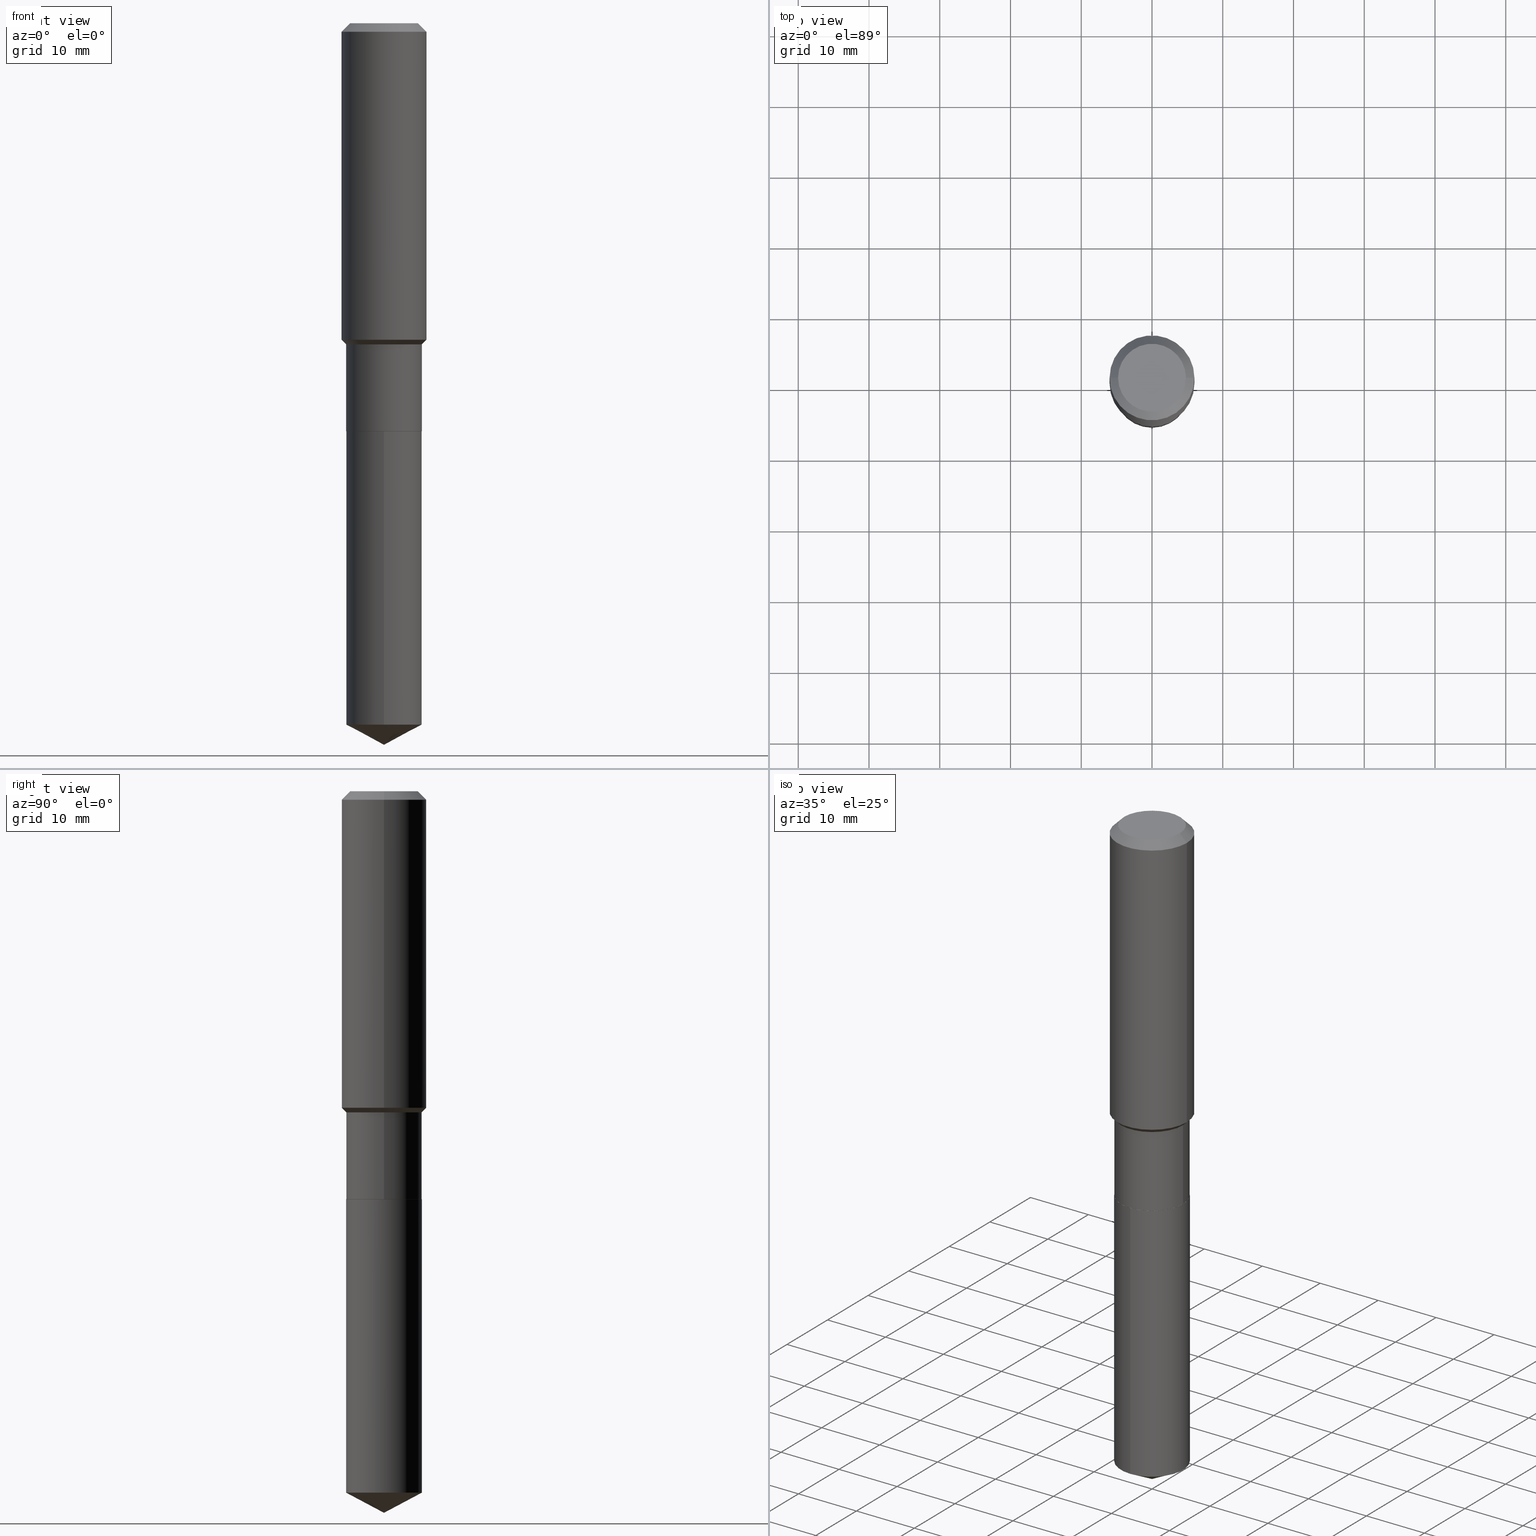
[diagram: canonical four-view strip — front | top / right | iso, engineering-drawing reading convention]
A machine part, canonical four-view strip (front | top / right | iso — engineering-drawing reading convention). The complete STEP part file that produces these views, byte-faithful:
ISO-10303-21;
HEADER;
FILE_DESCRIPTION (( 'STEP AP203' ),
    '1' );
FILE_NAME ('64677.STEP',
    '2024-04-24T18:43:59',
    ( '' ),
    ( '' ),
    'SwSTEP 2.0',
    'SolidWorks 2023',
    '' );
FILE_SCHEMA (( 'CONFIG_CONTROL_DESIGN' ));
ENDSEC;

DATA;
#1 = EDGE_LOOP ( 'NONE', ( #350, #304, #214, #456 ) ) ;
#2 = CARTESIAN_POINT ( 'NONE',  ( -8.645499744276047657E-28, 1.234434969436728800E-13, 35.35437874015748605 ) ) ;
#3 = ORIENTED_EDGE ( 'NONE', *, *, #106, .F. ) ;
#4 = CARTESIAN_POINT ( 'NONE',  ( 0.2362000000000001043, -1.649375784469496920E-15, 1.151752954443000508E-29 ) ) ;
#5 = ORIENTED_EDGE ( 'NONE', *, *, #271, .F. ) ;
#6 = CARTESIAN_POINT ( 'NONE',  ( 9.820314816619303750E-29, -1.402068072083418288E-14, -4.015699999999999825 ) ) ;
#7 = EDGE_LOOP ( 'NONE', ( #394, #159 ) ) ;
#8 = DIRECTION ( 'NONE',  ( -2.445468806185136597E-29, 3.491481338843145583E-15, 1.000000000000000000 ) ) ;
#9 = COORDINATED_UNIVERSAL_TIME_OFFSET ( 5, 0, .BEHIND. ) ;
#10 = ORIENTED_EDGE ( 'NONE', *, *, #217, .T. ) ;
#11 = DIRECTION ( 'NONE',  ( 1.000000000000000000, -6.982962677686266711E-15, 0.000000000000000000 ) ) ;
#12 = APPROVAL_DATE_TIME ( #213, #337 ) ;
#13 = CARTESIAN_POINT ( 'NONE',  ( -9.427742298522546243E-47, 1.346031739168365344E-32, 3.855188123715862256E-18 ) ) ;
#14 = ORIENTED_EDGE ( 'NONE', *, *, #428, .F. ) ;
#15 = CONICAL_SURFACE ( 'NONE', #163, 0.2361999999999999933, 0.7853981633974452814 ) ;
#16 = PERSON_AND_ORGANIZATION ( #476, #211 ) ;
#17 = CARTESIAN_POINT ( 'NONE',  ( 4.370297303533457201E-29, -6.239626300646584969E-15, -1.787099999999999911 ) ) ;
#18 = EDGE_CURVE ( 'NONE', #453, #127, #290, .T. ) ;
#19 = AXIS2_PLACEMENT_3D ( 'NONE', #34, #102, #448 ) ;
#20 = PRODUCT_DEFINITION ( 'UNKNOWN', '', #344, #309 ) ;
#21 = CARTESIAN_POINT ( 'NONE',  ( 9.546233790856167892E-29, -1.362986807001223316E-14, -3.903695408220509755 ) ) ;
#22 = DIRECTION ( 'NONE',  ( 1.000000000000000000, -6.982962677686268288E-15, 0.000000000000000000 ) ) ;
#23 = ADVANCED_FACE ( 'NONE', ( #237 ), #15, .T. ) ;
#24 = ORIENTED_EDGE ( 'NONE', *, *, #217, .F. ) ;
#25 = CARTESIAN_POINT ( 'NONE',  ( -0.2101500000000000035, -6.435394222942127608E-15, -2.271599999999999842 ) ) ;
#26 = CIRCLE ( 'NONE', #19, 0.2106500000000000039 ) ;
#27 = DIRECTION ( 'NONE',  ( -2.445468806185136597E-29, 3.491481338843145583E-15, 1.000000000000000000 ) ) ;
#28 = FACE_OUTER_BOUND ( 'NONE', #313, .T. ) ;
#29 = MANIFOLD_SOLID_BREP ( 'Body-Move/Copy2[1]', #255 ) ;
#30 = CARTESIAN_POINT ( 'NONE',  ( 0.2361999999999999933, -1.785387205520586782E-15, -0.04724000000000028177 ) ) ;
#31 = VECTOR ( 'NONE', #50, 39.37007874015748143 ) ;
#32 = ORIENTED_EDGE ( 'NONE', *, *, #39, .T. ) ;
#33 = FACE_OUTER_BOUND ( 'NONE', #229, .T. ) ;
#34 = CARTESIAN_POINT ( 'NONE',  ( 5.553904205727063700E-29, -7.929503268646668266E-15, -2.271100000000000119 ) ) ;
#35 = CONICAL_SURFACE ( 'NONE', #205, 0.2106499999999999484, 0.7853981633974489451 ) ;
#36 = LINE ( 'NONE', #149, #376 ) ;
#37 = VECTOR ( 'NONE', #48, 39.37007874015748854 ) ;
#38 = VERTEX_POINT ( 'NONE', #270 ) ;
#39 = EDGE_CURVE ( 'NONE', #418, #374, #259, .T. ) ;
#40 = DATE_AND_TIME ( #188, #328 ) ;
#41 = EDGE_LOOP ( 'NONE', ( #333, #65, #114, #196 ) ) ;
#42 = CARTESIAN_POINT ( 'NONE',  ( 0.000000000000000000, 0.000000000000000000, 0.000000000000000000 ) ) ;
#43 = AXIS2_PLACEMENT_3D ( 'NONE', #99, #175, #490 ) ;
#44 =( LENGTH_UNIT ( ) NAMED_UNIT ( * ) SI_UNIT ( $, .METRE. ) );
#45 = ORIENTED_EDGE ( 'NONE', *, *, #449, .F. ) ;
#46 = APPLICATION_PROTOCOL_DEFINITION ( 'international standard', 'config_control_design', 1994, #260 ) ;
#47 = DIRECTION ( 'NONE',  ( 2.445468806185136597E-29, -3.491481338843145583E-15, -1.000000000000000000 ) ) ;
#48 = DIRECTION ( 'NONE',  ( 0.7071067811865479058, -2.468850131082261399E-15, 0.7071067811865470176 ) ) ;
#49 = ADVANCED_FACE ( 'NONE', ( #472 ), #441, .T. ) ;
#50 = DIRECTION ( 'NONE',  ( -6.165590087286828929E-15, -0.8829475928589255451, 0.4694715627858933038 ) ) ;
#51 = APPROVAL ( #197, 'UNSPECIFIED' ) ;
#52 = VERTEX_POINT ( 'NONE', #25 ) ;
#53 = LINE ( 'NONE', #93, #37 ) ;
#54 = CONICAL_SURFACE ( 'NONE', #402, 0.2101500000000000035, 0.7853981633975507526 ) ;
#55 = SECURITY_CLASSIFICATION ( '', '', #477 ) ;
#56 = DIRECTION ( 'NONE',  ( -2.445388198890624822E-29, 3.491596773076768913E-15, 1.000000000000000000 ) ) ;
#57 = DIRECTION ( 'NONE',  ( -2.445468806185136877E-29, 3.491481338843145188E-15, 1.000000000000000000 ) ) ;
#58 = EDGE_CURVE ( 'NONE', #127, #115, #254, .T. ) ;
#59 = DIRECTION ( 'NONE',  ( 0.7071067811865453523, -7.319954787623248157E-15, -0.7071067811865496822 ) ) ;
#60 = APPROVAL_PERSON_ORGANIZATION ( #16, #341, #445 ) ;
#61 = DIRECTION ( 'NONE',  ( 2.438088387897960049E-29, -3.491481338843145188E-15, -1.000000000000000000 ) ) ;
#62 = CARTESIAN_POINT ( 'NONE',  ( -0.2106500000000000039, -5.587806511767975548E-15, -2.271100000000000119 ) ) ;
#63 = ADVANCED_FACE ( 'NONE', ( #347 ), #458, .F. ) ;
#64 = CC_DESIGN_PERSON_AND_ORGANIZATION_ASSIGNMENT ( #84, #369, ( #55 ) ) ;
#65 = ORIENTED_EDGE ( 'NONE', *, *, #252, .T. ) ;
#66 = DIRECTION ( 'NONE',  ( -2.445468806185136597E-29, 3.491481338843145583E-15, 1.000000000000000000 ) ) ;
#67 = ORIENTED_EDGE ( 'NONE', *, *, #106, .T. ) ;
#68 = CARTESIAN_POINT ( 'NONE',  ( -0.2106499999999999484, -5.587806511767975548E-15, -1.787099999999999911 ) ) ;
#69 = EDGE_CURVE ( 'NONE', #425, #52, #306, .T. ) ;
#70 = ORIENTED_EDGE ( 'NONE', *, *, #469, .F. ) ;
#71 =( NAMED_UNIT ( * ) PLANE_ANGLE_UNIT ( ) SI_UNIT ( $, .RADIAN. ) );
#72 = PRODUCT_RELATED_PRODUCT_CATEGORY ( 'detail', '', ( #390 ) ) ;
#73 = ORIENTED_EDGE ( 'NONE', *, *, #443, .T. ) ;
#74 = ORIENTED_EDGE ( 'NONE', *, *, #136, .T. ) ;
#75 = MECHANICAL_CONTEXT ( 'NONE', #119, 'mechanical' ) ;
#76 = VECTOR ( 'NONE', #59, 39.37007874015748143 ) ;
#77 = ORIENTED_EDGE ( 'NONE', *, *, #98, .T. ) ;
#78 = CC_DESIGN_DATE_AND_TIME_ASSIGNMENT ( #168, #442, ( #55 ) ) ;
#79 = AXIS2_PLACEMENT_3D ( 'NONE', #228, #455, #393 ) ;
#80 = LINE ( 'NONE', #440, #334 ) ;
#81 = VECTOR ( 'NONE', #359, 39.37007874015748143 ) ;
#82 = LOCAL_TIME ( 14, 43, 59.00000000000000000, #242 ) ;
#83 = ADVANCED_FACE ( 'NONE', ( #96 ), #303, .F. ) ;
#84 = PERSON_AND_ORGANIZATION ( #476, #211 ) ;
#85 = ORIENTED_EDGE ( 'NONE', *, *, #176, .F. ) ;
#86 = CARTESIAN_POINT ( 'NONE',  ( -9.427742298522546243E-47, 1.346031739168365344E-32, 3.855188123715862256E-18 ) ) ;
#87 = COORDINATED_UNIVERSAL_TIME_OFFSET ( 5, 0, .BEHIND. ) ;
#88 = CARTESIAN_POINT ( 'NONE',  ( 1.496758272878746719E-15, 0.2106499999999921213, -2.271600000000000730 ) ) ;
#89 = VECTOR ( 'NONE', #57, 39.37007874015748143 ) ;
#90 = DIRECTION ( 'NONE',  ( 1.000000000000000000, -6.982962677686266711E-15, 4.876185090822587894E-29 ) ) ;
#91 = CIRCLE ( 'NONE', #133, 0.2106500000000000039 ) ;
#92 = COORDINATED_UNIVERSAL_TIME_OFFSET ( 5, 0, .BEHIND. ) ;
#93 = CARTESIAN_POINT ( 'NONE',  ( 0.2106499999999999484, -7.710587388701196730E-15, -1.787099999999999911 ) ) ;
#94 = DIRECTION ( 'NONE',  ( -2.445468806185136877E-29, 3.491481338843145188E-15, 1.000000000000000000 ) ) ;
#95 = CARTESIAN_POINT ( 'NONE',  ( 5.553904205727063700E-29, -7.929503268646668266E-15, -2.271100000000000119 ) ) ;
#96 = FACE_OUTER_BOUND ( 'NONE', #203, .T. ) ;
#97 = CIRCLE ( 'NONE', #257, 0.2106499999999999484 ) ;
#98 = EDGE_CURVE ( 'NONE', #281, #418, #36, .T. ) ;
#99 = CARTESIAN_POINT ( 'NONE',  ( 5.555126940130156501E-29, -7.931249009316088980E-15, -2.271599999999999842 ) ) ;
#100 = EDGE_CURVE ( 'NONE', #427, #374, #216, .T. ) ;
#101 = EDGE_LOOP ( 'NONE', ( #264, #420, #103, #45 ) ) ;
#102 = DIRECTION ( 'NONE',  ( -2.445468806185136597E-29, 3.491481338843145583E-15, 1.000000000000000000 ) ) ;
#103 = ORIENTED_EDGE ( 'NONE', *, *, #412, .F. ) ;
#104 = AXIS2_PLACEMENT_3D ( 'NONE', #487, #298, #145 ) ;
#105 = PLANE ( 'NONE',  #219 ) ;
#106 = EDGE_CURVE ( 'NONE', #459, #453, #294, .T. ) ;
#107 = ORIENTED_EDGE ( 'NONE', *, *, #252, .F. ) ;
#108 = AXIS2_PLACEMENT_3D ( 'NONE', #95, #141, #338 ) ;
#109 = CALENDAR_DATE ( 2024, 24, 4 ) ;
#110 = CARTESIAN_POINT ( 'NONE',  ( 1.155239464041865506E-30, -1.649375784469511859E-16, -0.04724000000000028177 ) ) ;
#111 = ORIENTED_EDGE ( 'NONE', *, *, #18, .F. ) ;
#112 = SHAPE_DEFINITION_REPRESENTATION ( #193, #146 ) ;
#113 = LINE ( 'NONE', #308, #387 ) ;
#114 = ORIENTED_EDGE ( 'NONE', *, *, #176, .T. ) ;
#115 = VERTEX_POINT ( 'NONE', #88 ) ;
#116 = EDGE_CURVE ( 'NONE', #38, #418, #138, .T. ) ;
#117 =( CONVERSION_BASED_UNIT ( 'INCH', #154 ) LENGTH_UNIT ( ) NAMED_UNIT ( #365 ) );
#118 = LOCAL_TIME ( 14, 43, 59.00000000000000000, #9 ) ;
#119 = APPLICATION_CONTEXT ( 'configuration controlled 3d designs of mechanical parts and assemblies' ) ;
#120 = DIRECTION ( 'NONE',  ( 1.000000000000000000, 0.000000000000000000, 0.000000000000000000 ) ) ;
#121 = ORIENTED_EDGE ( 'NONE', *, *, #469, .T. ) ;
#122 = PERSON_AND_ORGANIZATION ( #476, #211 ) ;
#123 = EDGE_CURVE ( 'NONE', #230, #374, #80, .T. ) ;
#124 = PERSON_AND_ORGANIZATION ( #476, #211 ) ;
#125 = FACE_OUTER_BOUND ( 'NONE', #101, .T. ) ;
#126 = CIRCLE ( 'NONE', #413, 0.2361999999999999933 ) ;
#127 = VERTEX_POINT ( 'NONE', #240 ) ;
#128 = DATE_TIME_ROLE ( 'creation_date' ) ;
#129 = CARTESIAN_POINT ( 'NONE',  ( 9.819945390285080048E-29, -1.402120516164437956E-14, -4.015699999999999825 ) ) ;
#130 = DIRECTION ( 'NONE',  ( 1.000000000000000000, -6.982962677686267499E-15, 0.000000000000000000 ) ) ;
#131 = APPROVAL_STATUS ( 'not_yet_approved' ) ;
#132 = DIRECTION ( 'NONE',  ( -2.445468806185136597E-29, 3.491481338843145583E-15, 1.000000000000000000 ) ) ;
#133 = AXIS2_PLACEMENT_3D ( 'NONE', #21, #243, #169 ) ;
#134 = CARTESIAN_POINT ( 'NONE',  ( -0.2101500000000000035, -6.438043450116238809E-15, -2.271599999999999842 ) ) ;
#135 = DIRECTION ( 'NONE',  ( 1.000000000000000000, -6.982962677686268288E-15, 0.000000000000000000 ) ) ;
#136 = EDGE_CURVE ( 'NONE', #230, #182, #415, .T. ) ;
#137 = DIRECTION ( 'NONE',  ( -2.445388198890624822E-29, 3.491596773076768913E-15, 1.000000000000000000 ) ) ;
#138 = CIRCLE ( 'NONE', #385, 0.2362000000000002153 ) ;
#139 = CIRCLE ( 'NONE', #166, 0.2106500000000000039 ) ;
#140 = ORIENTED_EDGE ( 'NONE', *, *, #100, .T. ) ;
#141 = DIRECTION ( 'NONE',  ( -2.445468806185136597E-29, 3.491481338843145583E-15, 1.000000000000000000 ) ) ;
#142 = EDGE_LOOP ( 'NONE', ( #300, #32, #232, #14 ) ) ;
#143 = EDGE_CURVE ( 'NONE', #356, #281, #471, .T. ) ;
#144 = CARTESIAN_POINT ( 'NONE',  ( 0.2361999999999999933, -1.814313362916447440E-15, -0.04724000000000028177 ) ) ;
#145 = DIRECTION ( 'NONE',  ( 6.982962677686265922E-15, 1.000000000000000000, -3.491596773076768913E-15 ) ) ;
#146 = ADVANCED_BREP_SHAPE_REPRESENTATION ( '64677', ( #29, #379, #225 ), #158 ) ;
#147 = EDGE_LOOP ( 'NONE', ( #345, #150, #153, #282 ) ) ;
#148 = CARTESIAN_POINT ( 'NONE',  ( 1.155239464041865506E-30, -1.649375784469511859E-16, -0.04724000000000028177 ) ) ;
#149 = CARTESIAN_POINT ( 'NONE',  ( -0.2106499999999999484, -4.742868027767933900E-15, -1.787099999999999911 ) ) ;
#150 = ORIENTED_EDGE ( 'NONE', *, *, #464, .T. ) ;
#151 = CIRCLE ( 'NONE', #291, 0.2106499999999999484 ) ;
#152 = DIRECTION ( 'NONE',  ( -2.445468806185136597E-29, 3.491481338843145583E-15, 1.000000000000000000 ) ) ;
#153 = ORIENTED_EDGE ( 'NONE', *, *, #428, .T. ) ;
#154 = LENGTH_MEASURE_WITH_UNIT ( LENGTH_MEASURE( 0.02539999999999999897 ), #44 );
#155 = CYLINDRICAL_SURFACE ( 'NONE', #200, 0.2106499999999999762 ) ;
#156 = ORIENTED_EDGE ( 'NONE', *, *, #363, .F. ) ;
#157 = LINE ( 'NONE', #6, #277 ) ;
#158 =( GEOMETRIC_REPRESENTATION_CONTEXT ( 3 ) GLOBAL_UNCERTAINTY_ASSIGNED_CONTEXT ( ( #430 ) ) GLOBAL_UNIT_ASSIGNED_CONTEXT ( ( #117, #71, #280 ) ) REPRESENTATION_CONTEXT ( 'NONE', 'WORKASPACE' ) );
#159 = ORIENTED_EDGE ( 'NONE', *, *, #198, .T. ) ;
#160 = ADVANCED_FACE ( 'NONE', ( #325 ), #35, .T. ) ;
#161 = VERTEX_POINT ( 'NONE', #406 ) ;
#162 = CARTESIAN_POINT ( 'NONE',  ( -0.2106499999999999762, 1.496758272878650872E-15, -1.036173676762195916E-29 ) ) ;
#163 = AXIS2_PLACEMENT_3D ( 'NONE', #403, #47, #266 ) ;
#164 = CALENDAR_DATE ( 2024, 24, 4 ) ;
#165 = DIRECTION ( 'NONE',  ( -2.445468806185136597E-29, 3.491481338843145583E-15, 1.000000000000000000 ) ) ;
#166 = AXIS2_PLACEMENT_3D ( 'NONE', #391, #486, #218 ) ;
#167 = VECTOR ( 'NONE', #404, 39.37007874015748143 ) ;
#168 = DATE_AND_TIME ( #367, #82 ) ;
#169 = DIRECTION ( 'NONE',  ( -6.982962677686265922E-15, -1.000000000000000000, 2.593731776562319814E-15 ) ) ;
#170 = FACE_OUTER_BOUND ( 'NONE', #470, .T. ) ;
#171 = AXIS2_PLACEMENT_3D ( 'NONE', #245, #447, #251 ) ;
#172 = ORIENTED_EDGE ( 'NONE', *, *, #198, .F. ) ;
#173 = DIRECTION ( 'NONE',  ( -2.445468806185136597E-29, 3.491481338843145583E-15, 1.000000000000000000 ) ) ;
#174 = VECTOR ( 'NONE', #457, 39.37007874015748143 ) ;
#175 = DIRECTION ( 'NONE',  ( -2.445388198890624822E-29, 3.491596773076768913E-15, 1.000000000000000000 ) ) ;
#176 = EDGE_CURVE ( 'NONE', #207, #38, #53, .T. ) ;
#177 = CC_DESIGN_PERSON_AND_ORGANIZATION_ASSIGNMENT ( #191, #460, ( #390 ) ) ;
#178 = CYLINDRICAL_SURFACE ( 'NONE', #43, 0.2106500000000000039 ) ;
#179 = CARTESIAN_POINT ( 'NONE',  ( -0.2361999999999999933, -1.479376323577688976E-15, -0.04724000000000028177 ) ) ;
#180 = DIRECTION ( 'NONE',  ( -2.445388198890624822E-29, 3.491596773076768913E-15, 1.000000000000000000 ) ) ;
#181 = CONICAL_SURFACE ( 'NONE', #238, 0.2361999999999999933, 0.7853981633974452814 ) ;
#182 = VERTEX_POINT ( 'NONE', #332 ) ;
#183 = DIRECTION ( 'NONE',  ( 1.000000000000000000, -6.982962677686266711E-15, 0.000000000000000000 ) ) ;
#184 = EDGE_LOOP ( 'NONE', ( #156, #189, #268, #389 ) ) ;
#185 = LINE ( 'NONE', #4, #267 ) ;
#186 = ORIENTED_EDGE ( 'NONE', *, *, #293, .F. ) ;
#187 = AXIS2_PLACEMENT_3D ( 'NONE', #435, #320, #467 ) ;
#188 = CALENDAR_DATE ( 2024, 24, 4 ) ;
#189 = ORIENTED_EDGE ( 'NONE', *, *, #136, .F. ) ;
#190 = CIRCLE ( 'NONE', #299, 0.1889600000000000168 ) ;
#191 = PERSON_AND_ORGANIZATION ( #476, #211 ) ;
#192 = ADVANCED_FACE ( 'NONE', ( #125 ), #208, .T. ) ;
#193 = PRODUCT_DEFINITION_SHAPE ( 'NONE', 'NONE',  #20 ) ;
#194 = EDGE_LOOP ( 'NONE', ( #70, #67, #241 ) ) ;
#195 = APPLICATION_PROTOCOL_DEFINITION ( 'international standard', 'config_control_design', 1994, #119 ) ;
#196 = ORIENTED_EDGE ( 'NONE', *, *, #464, .F. ) ;
#197 = APPROVAL_STATUS ( 'not_yet_approved' ) ;
#198 = EDGE_CURVE ( 'NONE', #115, #316, #233, .T. ) ;
#199 = APPROVAL_DATE_TIME ( #468, #51 ) ;
#200 = AXIS2_PLACEMENT_3D ( 'NONE', #317, #152, #432 ) ;
#201 = APPROVAL_PERSON_ORGANIZATION ( #322, #51, #314 ) ;
#202 = DIRECTION ( 'NONE',  ( 1.000000000000000000, -6.982962677686266711E-15, 0.000000000000000000 ) ) ;
#203 = EDGE_LOOP ( 'NONE', ( #384, #288 ) ) ;
#204 = CARTESIAN_POINT ( 'NONE',  ( 5.555126940130156501E-29, -7.931249009316088980E-15, -2.271599999999999842 ) ) ;
#205 = AXIS2_PLACEMENT_3D ( 'NONE', #248, #173, #446 ) ;
#206 = PERSON_AND_ORGANIZATION_ROLE ( 'creator' ) ;
#207 = VERTEX_POINT ( 'NONE', #215 ) ;
#208 = CYLINDRICAL_SURFACE ( 'NONE', #319, 0.2106500000000000039 ) ;
#209 = AXIS2_PLACEMENT_3D ( 'NONE', #426, #397, #424 ) ;
#210 = ADVANCED_FACE ( 'NONE', ( #439 ), #54, .T. ) ;
#211 = ORGANIZATION ( 'UNSPECIFIED', 'UNSPECIFIED', '' ) ;
#212 = DIRECTION ( 'NONE',  ( -6.982962677686265922E-15, -1.000000000000000000, 3.890597664843479129E-15 ) ) ;
#213 = DATE_AND_TIME ( #331, #482 ) ;
#214 = ORIENTED_EDGE ( 'NONE', *, *, #392, .F. ) ;
#215 = CARTESIAN_POINT ( 'NONE',  ( 0.2106499999999999484, -7.710587388701196730E-15, -1.787099999999999911 ) ) ;
#216 = CIRCLE ( 'NONE', #480, 0.2361999999999999933 ) ;
#217 = EDGE_CURVE ( 'NONE', #182, #230, #190, .T. ) ;
#218 = DIRECTION ( 'NONE',  ( -6.982962677686265922E-15, -1.000000000000000000, 3.890597664843479129E-15 ) ) ;
#219 = AXIS2_PLACEMENT_3D ( 'NONE', #305, #61, #258 ) ;
#220 = CYLINDRICAL_SURFACE ( 'NONE', #343, 0.2362000000000001043 ) ;
#221 = FACE_OUTER_BOUND ( 'NONE', #184, .T. ) ;
#222 = ORIENTED_EDGE ( 'NONE', *, *, #311, .T. ) ;
#223 = DIRECTION ( 'NONE',  ( -2.445468806185136597E-29, 3.491481338843145583E-15, 1.000000000000000000 ) ) ;
#224 = CARTESIAN_POINT ( 'NONE',  ( 1.496758272878706487E-15, 0.2106499999999920936, -2.271600000000000730 ) ) ;
#225 = AXIS2_PLACEMENT_3D ( 'NONE', #42, #429, #120 ) ;
#226 = ORIENTED_EDGE ( 'NONE', *, *, #434, .T. ) ;
#227 = DIRECTION ( 'NONE',  ( 1.000000000000000000, -6.982962677686266711E-15, 4.876176775795935793E-29 ) ) ;
#228 = CARTESIAN_POINT ( 'NONE',  ( 5.555126940130156501E-29, -7.931249009316088980E-15, -2.271599999999999842 ) ) ;
#229 = EDGE_LOOP ( 'NONE', ( #74, #10 ) ) ;
#230 = VERTEX_POINT ( 'NONE', #292 ) ;
#231 = EDGE_CURVE ( 'NONE', #127, #453, #91, .T. ) ;
#232 = ORIENTED_EDGE ( 'NONE', *, *, #100, .F. ) ;
#233 = CIRCLE ( 'NONE', #284, 0.2106500000000000039 ) ;
#234 = CARTESIAN_POINT ( 'NONE',  ( 9.819945390285080048E-29, -1.402120516164437956E-14, -4.015699999999999825 ) ) ;
#235 = ADVANCED_FACE ( 'NONE', ( #170 ), #437, .T. ) ;
#236 = ORIENTED_EDGE ( 'NONE', *, *, #388, .F. ) ;
#237 = FACE_OUTER_BOUND ( 'NONE', #323, .T. ) ;
#238 = AXIS2_PLACEMENT_3D ( 'NONE', #349, #382, #414 ) ;
#239 = CC_DESIGN_PERSON_AND_ORGANIZATION_ASSIGNMENT ( #122, #206, ( #344 ) ) ;
#240 = CARTESIAN_POINT ( 'NONE',  ( 1.496758272878745930E-15, 0.2106499999999863759, -3.903695408220510199 ) ) ;
#241 = ORIENTED_EDGE ( 'NONE', *, *, #231, .F. ) ;
#242 = COORDINATED_UNIVERSAL_TIME_OFFSET ( 5, 0, .BEHIND. ) ;
#243 = DIRECTION ( 'NONE',  ( -2.445388198890624822E-29, 3.491596773076768913E-15, 1.000000000000000000 ) ) ;
#244 = DIRECTION ( 'NONE',  ( 1.000000000000000000, -6.982962677686266711E-15, 0.000000000000000000 ) ) ;
#245 = CARTESIAN_POINT ( 'NONE',  ( 0.000000000000000000, 0.000000000000000000, 0.000000000000000000 ) ) ;
#246 = PERSON_AND_ORGANIZATION_ROLE ( 'design_supplier' ) ;
#247 = CIRCLE ( 'NONE', #312, 0.2101500000000000035 ) ;
#248 = CARTESIAN_POINT ( 'NONE',  ( 4.370297303533457201E-29, -6.239626300646584969E-15, -1.787099999999999911 ) ) ;
#249 = DATE_AND_TIME ( #164, #416 ) ;
#250 = CARTESIAN_POINT ( 'NONE',  ( 5.555126940130156501E-29, -7.931249009316088980E-15, -2.271599999999999842 ) ) ;
#251 = DIRECTION ( 'NONE',  ( 1.000000000000000000, -6.982962677686266711E-15, 4.876176775795935793E-29 ) ) ;
#252 = EDGE_CURVE ( 'NONE', #281, #207, #151, .T. ) ;
#253 = DIRECTION ( 'NONE',  ( 1.000000000000000000, -6.982962677686267499E-15, 0.000000000000000000 ) ) ;
#254 = LINE ( 'NONE', #224, #383 ) ;
#255 = CLOSED_SHELL ( 'NONE', ( #192, #484, #340, #326, #63 ) ) ;
#256 = FACE_OUTER_BOUND ( 'NONE', #142, .T. ) ;
#257 = AXIS2_PLACEMENT_3D ( 'NONE', #419, #66, #253 ) ;
#258 = DIRECTION ( 'NONE',  ( -1.000000000000000000, 6.982962677686265922E-15, -4.876176775795935793E-29 ) ) ;
#259 = LINE ( 'NONE', #479, #89 ) ;
#260 = APPLICATION_CONTEXT ( 'configuration controlled 3d designs of mechanical parts and assemblies' ) ;
#261 = ORIENTED_EDGE ( 'NONE', *, *, #392, .T. ) ;
#262 = CARTESIAN_POINT ( 'NONE',  ( -1.470961088054556343E-15, -0.2106500000000079420, -2.271599999999998953 ) ) ;
#263 = ADVANCED_FACE ( 'NONE', ( #373 ), #327, .T. ) ;
#264 = ORIENTED_EDGE ( 'NONE', *, *, #18, .T. ) ;
#265 = CARTESIAN_POINT ( 'NONE',  ( 0.2101500000000000035, -9.398718616031857734E-15, -2.271599999999999842 ) ) ;
#266 = DIRECTION ( 'NONE',  ( -1.000000000000000000, 6.982962677686266711E-15, 0.000000000000000000 ) ) ;
#267 = VECTOR ( 'NONE', #94, 39.37007874015748143 ) ;
#268 = ORIENTED_EDGE ( 'NONE', *, *, #123, .T. ) ;
#269 = PERSON_AND_ORGANIZATION_ROLE ( 'creator' ) ;
#270 = CARTESIAN_POINT ( 'NONE',  ( 0.2362000000000002153, -7.799794736908639901E-15, -1.761549999999999727 ) ) ;
#271 = EDGE_CURVE ( 'NONE', #52, #356, #483, .T. ) ;
#272 = ORIENTED_EDGE ( 'NONE', *, *, #363, .T. ) ;
#273 = DIRECTION ( 'NONE',  ( 6.273719981627760554E-15, 0.8829475928589289868, 0.4694715627858871976 ) ) ;
#274 = ORIENTED_EDGE ( 'NONE', *, *, #231, .T. ) ;
#275 = CLOSED_SHELL ( 'NONE', ( #263, #23, #301, #235, #381, #474, #160, #49, #357, #286, #83, #210 ) ) ;
#276 = AXIS2_PLACEMENT_3D ( 'NONE', #250, #478, #375 ) ;
#277 = VECTOR ( 'NONE', #273, 39.37007874015747433 ) ;
#278 = AXIS2_PLACEMENT_3D ( 'NONE', #13, #330, #90 ) ;
#279 = DIRECTION ( 'NONE',  ( -2.445388198890624822E-29, 3.491596773076768913E-15, 1.000000000000000000 ) ) ;
#280 =( NAMED_UNIT ( * ) SI_UNIT ( $, .STERADIAN. ) SOLID_ANGLE_UNIT ( ) );
#281 = VERTEX_POINT ( 'NONE', #68 ) ;
#282 = ORIENTED_EDGE ( 'NONE', *, *, #399, .F. ) ;
#283 = APPROVAL_STATUS ( 'not_yet_approved' ) ;
#284 = AXIS2_PLACEMENT_3D ( 'NONE', #204, #56, #212 ) ;
#285 = DIRECTION ( 'NONE',  ( -6.982962677686265922E-15, -1.000000000000000000, 3.890597664843479129E-15 ) ) ;
#286 = ADVANCED_FACE ( 'NONE', ( #33 ), #105, .F. ) ;
#287 = DIRECTION ( 'NONE',  ( 1.000000000000000000, -6.982962677686266711E-15, 4.876185090822587894E-29 ) ) ;
#288 = ORIENTED_EDGE ( 'NONE', *, *, #434, .F. ) ;
#289 = DIRECTION ( 'NONE',  ( -2.445468806185136597E-29, 3.491481338843145583E-15, 1.000000000000000000 ) ) ;
#290 = CIRCLE ( 'NONE', #187, 0.2106500000000000039 ) ;
#291 = AXIS2_PLACEMENT_3D ( 'NONE', #410, #475, #130 ) ;
#292 = CARTESIAN_POINT ( 'NONE',  ( -0.1889600000000000168, 1.401969416799070942E-15, 3.855188123706346622E-18 ) ) ;
#293 = EDGE_CURVE ( 'NONE', #356, #161, #352, .T. ) ;
#294 = LINE ( 'NONE', #129, #31 ) ;
#295 = LINE ( 'NONE', #433, #81 ) ;
#296 = DIRECTION ( 'NONE',  ( 1.000000000000000000, -6.982962677686268288E-15, 0.000000000000000000 ) ) ;
#297 = DIRECTION ( 'NONE',  ( 1.000000000000000000, -6.982962677686266711E-15, 4.876176775795935793E-29 ) ) ;
#298 = DIRECTION ( 'NONE',  ( 2.445388198890624262E-29, -3.491596773076768913E-15, -1.000000000000000000 ) ) ;
#299 = AXIS2_PLACEMENT_3D ( 'NONE', #86, #132, #287 ) ;
#300 = ORIENTED_EDGE ( 'NONE', *, *, #116, .T. ) ;
#301 = ADVANCED_FACE ( 'NONE', ( #256 ), #220, .T. ) ;
#302 = CARTESIAN_POINT ( 'NONE',  ( 0.000000000000000000, 0.000000000000000000, 0.000000000000000000 ) ) ;
#303 = PLANE ( 'NONE',  #79 ) ;
#304 = ORIENTED_EDGE ( 'NONE', *, *, #143, .T. ) ;
#305 = CARTESIAN_POINT ( 'NONE',  ( -4.713871149261273121E-47, 6.730158695841826722E-33, 1.927594061857931128E-18 ) ) ;
#306 = CIRCLE ( 'NONE', #401, 0.2101500000000000035 ) ;
#307 = ORIENTED_EDGE ( 'NONE', *, *, #271, .T. ) ;
#308 = CARTESIAN_POINT ( 'NONE',  ( -1.470961088054556343E-15, -0.2106500000000079420, -2.271599999999998953 ) ) ;
#309 = DESIGN_CONTEXT ( 'detailed design', #260, 'design' ) ;
#310 = DIRECTION ( 'NONE',  ( -0.7071067811865479058, 7.493145998870355738E-15, 0.7071067811865470176 ) ) ;
#311 = EDGE_CURVE ( 'NONE', #425, #161, #451, .T. ) ;
#312 = AXIS2_PLACEMENT_3D ( 'NONE', #378, #27, #135 ) ;
#313 = EDGE_LOOP ( 'NONE', ( #423, #274, #396, #172 ) ) ;
#314 = APPROVAL_ROLE ( '' ) ;
#315 = DIRECTION ( 'NONE',  ( -2.445468806185136597E-29, 3.491481338843145583E-15, 1.000000000000000000 ) ) ;
#316 = VERTEX_POINT ( 'NONE', #262 ) ;
#317 = CARTESIAN_POINT ( 'NONE',  ( 0.000000000000000000, 0.000000000000000000, 0.000000000000000000 ) ) ;
#318 = CARTESIAN_POINT ( 'NONE',  ( -1.470961088054516703E-15, -0.2106500000000136041, -3.903695408220509311 ) ) ;
#319 = AXIS2_PLACEMENT_3D ( 'NONE', #336, #372, #285 ) ;
#320 = DIRECTION ( 'NONE',  ( -2.445388198890624822E-29, 3.491596773076768913E-15, 1.000000000000000000 ) ) ;
#321 = CC_DESIGN_APPROVAL ( #51, ( #20 ) ) ;
#322 = PERSON_AND_ORGANIZATION ( #476, #211 ) ;
#323 = EDGE_LOOP ( 'NONE', ( #24, #272, #140, #324 ) ) ;
#324 = ORIENTED_EDGE ( 'NONE', *, *, #123, .F. ) ;
#325 = FACE_OUTER_BOUND ( 'NONE', #41, .T. ) ;
#326 = ADVANCED_FACE ( 'NONE', ( #28 ), #178, .T. ) ;
#327 = CONICAL_SURFACE ( 'NONE', #276, 0.2101500000000000035, 0.7853981633975507526 ) ;
#328 = LOCAL_TIME ( 14, 43, 59.00000000000000000, #395 ) ;
#329 = DIRECTION ( 'NONE',  ( -2.445468806185136597E-29, 3.491481338843145583E-15, 1.000000000000000000 ) ) ;
#330 = DIRECTION ( 'NONE',  ( -2.445468806185136597E-29, 3.491481338843145583E-15, 1.000000000000000000 ) ) ;
#331 = CALENDAR_DATE ( 2024, 24, 4 ) ;
#332 = CARTESIAN_POINT ( 'NONE',  ( 0.1889600000000000168, -1.540873453589747738E-15, 3.855188123725863225E-18 ) ) ;
#333 = ORIENTED_EDGE ( 'NONE', *, *, #98, .F. ) ;
#334 = VECTOR ( 'NONE', #364, 39.37007874015748143 ) ;
#335 = VECTOR ( 'NONE', #450, 39.37007874015748143 ) ;
#336 = CARTESIAN_POINT ( 'NONE',  ( 5.555126940130156501E-29, -7.931249009316088980E-15, -2.271599999999999842 ) ) ;
#337 = APPROVAL ( #283, 'UNSPECIFIED' ) ;
#338 = DIRECTION ( 'NONE',  ( 1.000000000000000000, -6.982962677686270655E-15, 0.000000000000000000 ) ) ;
#339 = DIRECTION ( 'NONE',  ( -6.982962677686265133E-15, -1.000000000000000000, 3.541896320645574279E-15 ) ) ;
#340 = ADVANCED_FACE ( 'NONE', ( #386 ), #407, .T. ) ;
#341 = APPROVAL ( #131, 'UNSPECIFIED' ) ;
#342 = FACE_OUTER_BOUND ( 'NONE', #1, .T. ) ;
#343 = AXIS2_PLACEMENT_3D ( 'NONE', #417, #380, #297 ) ;
#344 = PRODUCT_DEFINITION_FORMATION_WITH_SPECIFIED_SOURCE ( 'ANY', '', #390, .NOT_KNOWN. ) ;
#345 = ORIENTED_EDGE ( 'NONE', *, *, #39, .F. ) ;
#346 = CARTESIAN_POINT ( 'NONE',  ( 0.2101500000000000035, -9.398718616031857734E-15, -2.271599999999999842 ) ) ;
#347 = FACE_OUTER_BOUND ( 'NONE', #7, .T. ) ;
#348 = EDGE_LOOP ( 'NONE', ( #3, #121, #111 ) ) ;
#349 = CARTESIAN_POINT ( 'NONE',  ( 1.155239464041865506E-30, -1.649375784469511859E-16, -0.04724000000000028177 ) ) ;
#350 = ORIENTED_EDGE ( 'NONE', *, *, #388, .T. ) ;
#351 = FACE_OUTER_BOUND ( 'NONE', #348, .T. ) ;
#352 = CIRCLE ( 'NONE', #108, 0.2106500000000000039 ) ;
#353 = CC_DESIGN_SECURITY_CLASSIFICATION ( #55, ( #344 ) ) ;
#354 = ORIENTED_EDGE ( 'NONE', *, *, #143, .F. ) ;
#355 = CARTESIAN_POINT ( 'NONE',  ( 4.307815575535426705E-29, -6.150418952439141798E-15, -1.761549999999999727 ) ) ;
#356 = VERTEX_POINT ( 'NONE', #62 ) ;
#357 = ADVANCED_FACE ( 'NONE', ( #221 ), #181, .T. ) ;
#358 = ORIENTED_EDGE ( 'NONE', *, *, #311, .F. ) ;
#359 = DIRECTION ( 'NONE',  ( -2.445468806185136877E-29, 3.491481338843145188E-15, 1.000000000000000000 ) ) ;
#360 = EDGE_LOOP ( 'NONE', ( #5, #226, #222, #186 ) ) ;
#361 = CC_DESIGN_APPROVAL ( #341, ( #55 ) ) ;
#362 = PERSON_AND_ORGANIZATION ( #476, #211 ) ;
#363 = EDGE_CURVE ( 'NONE', #182, #427, #488, .T. ) ;
#364 = DIRECTION ( 'NONE',  ( -0.7071067811865453523, 2.468850131082234184E-15, -0.7071067811865496822 ) ) ;
#365 = DIMENSIONAL_EXPONENTS ( 1.000000000000000000, 0.000000000000000000, 0.000000000000000000, 0.000000000000000000, 0.000000000000000000, 0.000000000000000000, 0.000000000000000000 ) ;
#366 = ORIENTED_EDGE ( 'NONE', *, *, #69, .T. ) ;
#367 = CALENDAR_DATE ( 2024, 24, 4 ) ;
#368 = CARTESIAN_POINT ( 'NONE',  ( 5.555126940130156501E-29, -7.931249009316088980E-15, -2.271599999999999842 ) ) ;
#369 = PERSON_AND_ORGANIZATION_ROLE ( 'classification_officer' ) ;
#370 = CIRCLE ( 'NONE', #377, 0.2362000000000002153 ) ;
#371 = APPROVAL_PERSON_ORGANIZATION ( #124, #337, #436 ) ;
#372 = DIRECTION ( 'NONE',  ( -2.445388198890624822E-29, 3.491596773076768913E-15, 1.000000000000000000 ) ) ;
#373 = FACE_OUTER_BOUND ( 'NONE', #463, .T. ) ;
#374 = VERTEX_POINT ( 'NONE', #179 ) ;
#375 = DIRECTION ( 'NONE',  ( 1.000000000000000000, -6.982962677686268288E-15, 0.000000000000000000 ) ) ;
#376 = VECTOR ( 'NONE', #310, 39.37007874015748854 ) ;
#377 = AXIS2_PLACEMENT_3D ( 'NONE', #355, #8, #11 ) ;
#378 = CARTESIAN_POINT ( 'NONE',  ( 5.555126940130156501E-29, -7.931249009316088980E-15, -2.271599999999999842 ) ) ;
#379 = MANIFOLD_SOLID_BREP ( 'Body-Move/Copy2[2]', #275 ) ;
#380 = DIRECTION ( 'NONE',  ( -2.445468806185136597E-29, 3.491481338843145583E-15, 1.000000000000000000 ) ) ;
#381 = ADVANCED_FACE ( 'NONE', ( #342 ), #421, .T. ) ;
#382 = DIRECTION ( 'NONE',  ( 2.445468806185136597E-29, -3.491481338843145583E-15, -1.000000000000000000 ) ) ;
#383 = VECTOR ( 'NONE', #180, 39.37007874015748143 ) ;
#384 = ORIENTED_EDGE ( 'NONE', *, *, #69, .F. ) ;
#385 = AXIS2_PLACEMENT_3D ( 'NONE', #408, #289, #244 ) ;
#386 = FACE_OUTER_BOUND ( 'NONE', #194, .T. ) ;
#387 = VECTOR ( 'NONE', #279, 39.37007874015748143 ) ;
#388 = EDGE_CURVE ( 'NONE', #161, #356, #26, .T. ) ;
#389 = ORIENTED_EDGE ( 'NONE', *, *, #399, .T. ) ;
#390 = PRODUCT ( '64677', '64677', '', ( #75 ) ) ;
#391 = CARTESIAN_POINT ( 'NONE',  ( 5.555126940130156501E-29, -7.931249009316088980E-15, -2.271599999999999842 ) ) ;
#392 = EDGE_CURVE ( 'NONE', #207, #281, #97, .T. ) ;
#393 = DIRECTION ( 'NONE',  ( 1.000000000000000000, -6.982962677686265922E-15, 4.876176775795935793E-29 ) ) ;
#394 = ORIENTED_EDGE ( 'NONE', *, *, #412, .T. ) ;
#395 = COORDINATED_UNIVERSAL_TIME_OFFSET ( 5, 0, .BEHIND. ) ;
#396 = ORIENTED_EDGE ( 'NONE', *, *, #449, .T. ) ;
#397 = DIRECTION ( 'NONE',  ( -2.445388198890624822E-29, 3.491596773076768913E-15, 1.000000000000000000 ) ) ;
#398 = FACE_OUTER_BOUND ( 'NONE', #400, .T. ) ;
#399 = EDGE_CURVE ( 'NONE', #374, #427, #126, .T. ) ;
#400 = EDGE_LOOP ( 'NONE', ( #354, #465, #73, #107 ) ) ;
#401 = AXIS2_PLACEMENT_3D ( 'NONE', #452, #422, #296 ) ;
#402 = AXIS2_PLACEMENT_3D ( 'NONE', #368, #165, #22 ) ;
#403 = CARTESIAN_POINT ( 'NONE',  ( 1.155239464041865506E-30, -1.649375784469511859E-16, -0.04724000000000028177 ) ) ;
#404 = DIRECTION ( 'NONE',  ( -2.445468806185136877E-29, 3.491481338843145188E-15, 1.000000000000000000 ) ) ;
#405 = CC_DESIGN_PERSON_AND_ORGANIZATION_ASSIGNMENT ( #438, #246, ( #344 ) ) ;
#406 = CARTESIAN_POINT ( 'NONE',  ( 0.2106500000000000039, -9.400464356701280026E-15, -2.271100000000000119 ) ) ;
#407 = CONICAL_SURFACE ( 'NONE', #461, 74.04434902938325536, 1.082104136236484937 ) ;
#408 = CARTESIAN_POINT ( 'NONE',  ( 4.307815575535426705E-29, -6.150418952439141798E-15, -1.761549999999999727 ) ) ;
#409 = APPROVAL_DATE_TIME ( #249, #341 ) ;
#410 = CARTESIAN_POINT ( 'NONE',  ( 4.370297303533457201E-29, -6.239626300646584969E-15, -1.787099999999999911 ) ) ;
#411 = CARTESIAN_POINT ( 'NONE',  ( -0.2362000000000002153, -4.472117010573783826E-15, -1.761549999999999727 ) ) ;
#412 = EDGE_CURVE ( 'NONE', #316, #115, #139, .T. ) ;
#413 = AXIS2_PLACEMENT_3D ( 'NONE', #148, #223, #183 ) ;
#414 = DIRECTION ( 'NONE',  ( -1.000000000000000000, 6.982962677686266711E-15, 0.000000000000000000 ) ) ;
#415 = CIRCLE ( 'NONE', #278, 0.1889600000000000168 ) ;
#416 = LOCAL_TIME ( 14, 43, 59.00000000000000000, #92 ) ;
#417 = CARTESIAN_POINT ( 'NONE',  ( 0.000000000000000000, 0.000000000000000000, 0.000000000000000000 ) ) ;
#418 = VERTEX_POINT ( 'NONE', #411 ) ;
#419 = CARTESIAN_POINT ( 'NONE',  ( 4.370297303533457201E-29, -6.239626300646584969E-15, -1.787099999999999911 ) ) ;
#420 = ORIENTED_EDGE ( 'NONE', *, *, #58, .T. ) ;
#421 = CYLINDRICAL_SURFACE ( 'NONE', #466, 0.2106499999999999762 ) ;
#422 = DIRECTION ( 'NONE',  ( -2.445468806185136597E-29, 3.491481338843145583E-15, 1.000000000000000000 ) ) ;
#423 = ORIENTED_EDGE ( 'NONE', *, *, #58, .F. ) ;
#424 = DIRECTION ( 'NONE',  ( -6.982962677686265133E-15, -1.000000000000000000, 3.541896320645574279E-15 ) ) ;
#425 = VERTEX_POINT ( 'NONE', #346 ) ;
#426 = CARTESIAN_POINT ( 'NONE',  ( -8.645499744276047657E-28, 1.234434969436728800E-13, 35.35437874015748605 ) ) ;
#427 = VERTEX_POINT ( 'NONE', #144 ) ;
#428 = EDGE_CURVE ( 'NONE', #38, #427, #185, .T. ) ;
#429 = DIRECTION ( 'NONE',  ( 0.000000000000000000, 0.000000000000000000, 1.000000000000000000 ) ) ;
#430 = UNCERTAINTY_MEASURE_WITH_UNIT (LENGTH_MEASURE( 1.000000000000000082E-05 ), #117, 'distance_accuracy_value', 'NONE');
#431 = CONICAL_SURFACE ( 'NONE', #209, 74.04434902938325536, 1.082104136236484937 ) ;
#432 = DIRECTION ( 'NONE',  ( 1.000000000000000000, -6.982962677686266711E-15, 4.876176775795935793E-29 ) ) ;
#433 = CARTESIAN_POINT ( 'NONE',  ( 0.2106499999999999762, -1.470961088054611958E-15, 1.027166637821413806E-29 ) ) ;
#434 = EDGE_CURVE ( 'NONE', #52, #425, #247, .T. ) ;
#435 = CARTESIAN_POINT ( 'NONE',  ( 9.546233790856167892E-29, -1.362986807001223316E-14, -3.903695408220509755 ) ) ;
#436 = APPROVAL_ROLE ( '' ) ;
#437 = CONICAL_SURFACE ( 'NONE', #481, 0.2106499999999999484, 0.7853981633974489451 ) ;
#438 = PERSON_AND_ORGANIZATION ( #476, #211 ) ;
#439 = FACE_OUTER_BOUND ( 'NONE', #360, .T. ) ;
#440 = CARTESIAN_POINT ( 'NONE',  ( -0.2361999999999999933, 1.484438206022545019E-15, -0.04724000000000028177 ) ) ;
#441 = CYLINDRICAL_SURFACE ( 'NONE', #171, 0.2362000000000001043 ) ;
#442 = DATE_TIME_ROLE ( 'classification_date' ) ;
#443 = EDGE_CURVE ( 'NONE', #161, #207, #295, .T. ) ;
#444 = CC_DESIGN_PERSON_AND_ORGANIZATION_ASSIGNMENT ( #362, #269, ( #20 ) ) ;
#445 = APPROVAL_ROLE ( '' ) ;
#446 = DIRECTION ( 'NONE',  ( 1.000000000000000000, -6.982962677686267499E-15, 0.000000000000000000 ) ) ;
#447 = DIRECTION ( 'NONE',  ( -2.445468806185136597E-29, 3.491481338843145583E-15, 1.000000000000000000 ) ) ;
#448 = DIRECTION ( 'NONE',  ( 1.000000000000000000, -6.982962677686270655E-15, 0.000000000000000000 ) ) ;
#449 = EDGE_CURVE ( 'NONE', #453, #316, #113, .T. ) ;
#450 = DIRECTION ( 'NONE',  ( -0.7071067811866199593, 7.493145998870616062E-15, 0.7071067811864750752 ) ) ;
#451 = LINE ( 'NONE', #265, #174 ) ;
#452 = CARTESIAN_POINT ( 'NONE',  ( 5.555126940130156501E-29, -7.931249009316088980E-15, -2.271599999999999842 ) ) ;
#453 = VERTEX_POINT ( 'NONE', #318 ) ;
#454 = DIRECTION ( 'NONE',  ( -2.445468806185136597E-29, 3.491481338843145583E-15, 1.000000000000000000 ) ) ;
#455 = DIRECTION ( 'NONE',  ( -2.438088387897960049E-29, 3.491481338843145188E-15, 1.000000000000000000 ) ) ;
#456 = ORIENTED_EDGE ( 'NONE', *, *, #443, .F. ) ;
#457 = DIRECTION ( 'NONE',  ( 0.7071067811866199593, -2.468850131083015945E-15, 0.7071067811864750752 ) ) ;
#458 = PLANE ( 'NONE',  #104 ) ;
#459 = VERTEX_POINT ( 'NONE', #234 ) ;
#460 = PERSON_AND_ORGANIZATION_ROLE ( 'design_owner' ) ;
#461 = AXIS2_PLACEMENT_3D ( 'NONE', #2, #137, #339 ) ;
#462 = CC_DESIGN_APPROVAL ( #337, ( #344 ) ) ;
#463 = EDGE_LOOP ( 'NONE', ( #366, #307, #236, #358 ) ) ;
#464 = EDGE_CURVE ( 'NONE', #418, #38, #370, .T. ) ;
#465 = ORIENTED_EDGE ( 'NONE', *, *, #293, .T. ) ;
#466 = AXIS2_PLACEMENT_3D ( 'NONE', #302, #454, #227 ) ;
#467 = DIRECTION ( 'NONE',  ( -6.982962677686265922E-15, -1.000000000000000000, 2.593731776562319814E-15 ) ) ;
#468 = DATE_AND_TIME ( #109, #118 ) ;
#469 = EDGE_CURVE ( 'NONE', #459, #127, #157, .T. ) ;
#470 = EDGE_LOOP ( 'NONE', ( #261, #77, #489, #85 ) ) ;
#471 = LINE ( 'NONE', #162, #167 ) ;
#472 = FACE_OUTER_BOUND ( 'NONE', #147, .T. ) ;
#473 = DIRECTION ( 'NONE',  ( 1.000000000000000000, -6.982962677686267499E-15, 0.000000000000000000 ) ) ;
#474 = ADVANCED_FACE ( 'NONE', ( #398 ), #155, .T. ) ;
#475 = DIRECTION ( 'NONE',  ( -2.445468806185136597E-29, 3.491481338843145583E-15, 1.000000000000000000 ) ) ;
#476 = PERSON ( 'UNSPECIFIED', 'UNSPECIFIED', 'UNSPECIFIED', ('UNSPECIFIED'), ('UNSPECIFIED'), ('UNSPECIFIED') ) ;
#477 = SECURITY_CLASSIFICATION_LEVEL ( 'unclassified' ) ;
#478 = DIRECTION ( 'NONE',  ( -2.445468806185136597E-29, 3.491481338843145583E-15, 1.000000000000000000 ) ) ;
#479 = CARTESIAN_POINT ( 'NONE',  ( -0.2362000000000001043, 1.678301941865357380E-15, -1.161852468318209317E-29 ) ) ;
#480 = AXIS2_PLACEMENT_3D ( 'NONE', #110, #315, #202 ) ;
#481 = AXIS2_PLACEMENT_3D ( 'NONE', #17, #329, #473 ) ;
#482 = LOCAL_TIME ( 14, 43, 59.00000000000000000, #87 ) ;
#483 = LINE ( 'NONE', #134, #335 ) ;
#484 = ADVANCED_FACE ( 'NONE', ( #351 ), #431, .T. ) ;
#485 = CC_DESIGN_DATE_AND_TIME_ASSIGNMENT ( #40, #128, ( #20 ) ) ;
#486 = DIRECTION ( 'NONE',  ( -2.445388198890624822E-29, 3.491596773076768913E-15, 1.000000000000000000 ) ) ;
#487 = CARTESIAN_POINT ( 'NONE',  ( 5.555126940130156501E-29, -7.931249009316088980E-15, -2.271599999999999842 ) ) ;
#488 = LINE ( 'NONE', #30, #76 ) ;
#489 = ORIENTED_EDGE ( 'NONE', *, *, #116, .F. ) ;
#490 = DIRECTION ( 'NONE',  ( -6.982962677686265922E-15, -1.000000000000000000, 3.890597664843479129E-15 ) ) ;
ENDSEC;
END-ISO-10303-21;
